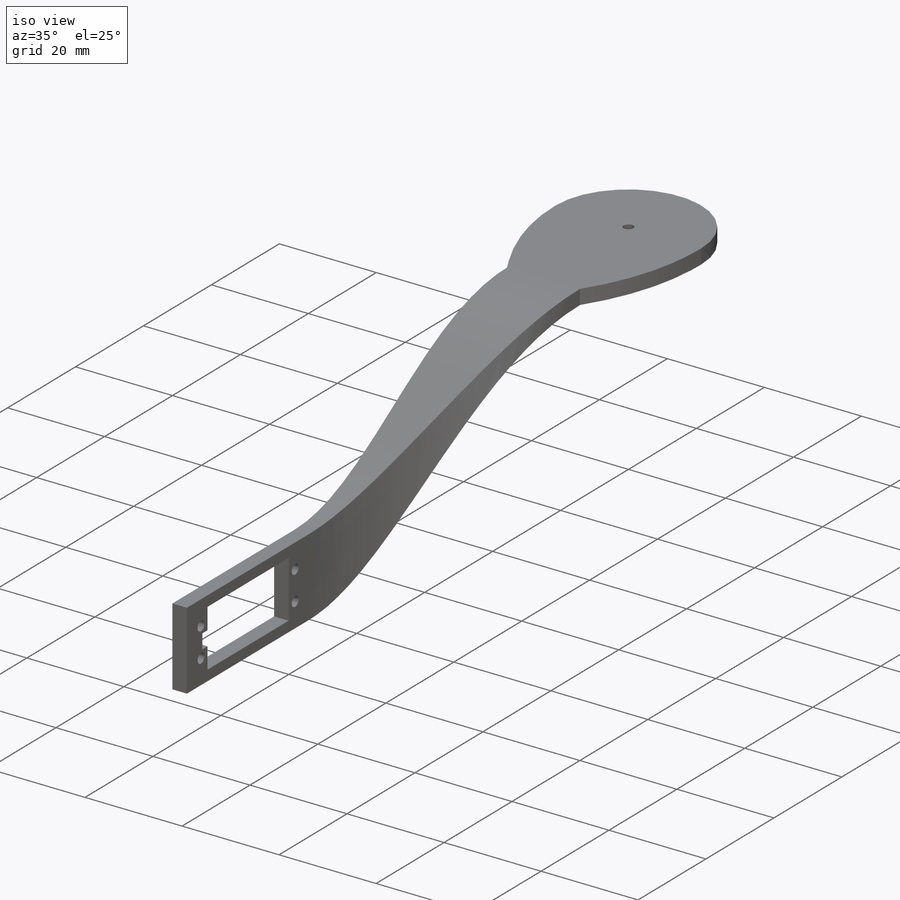
[diagram: iso view]
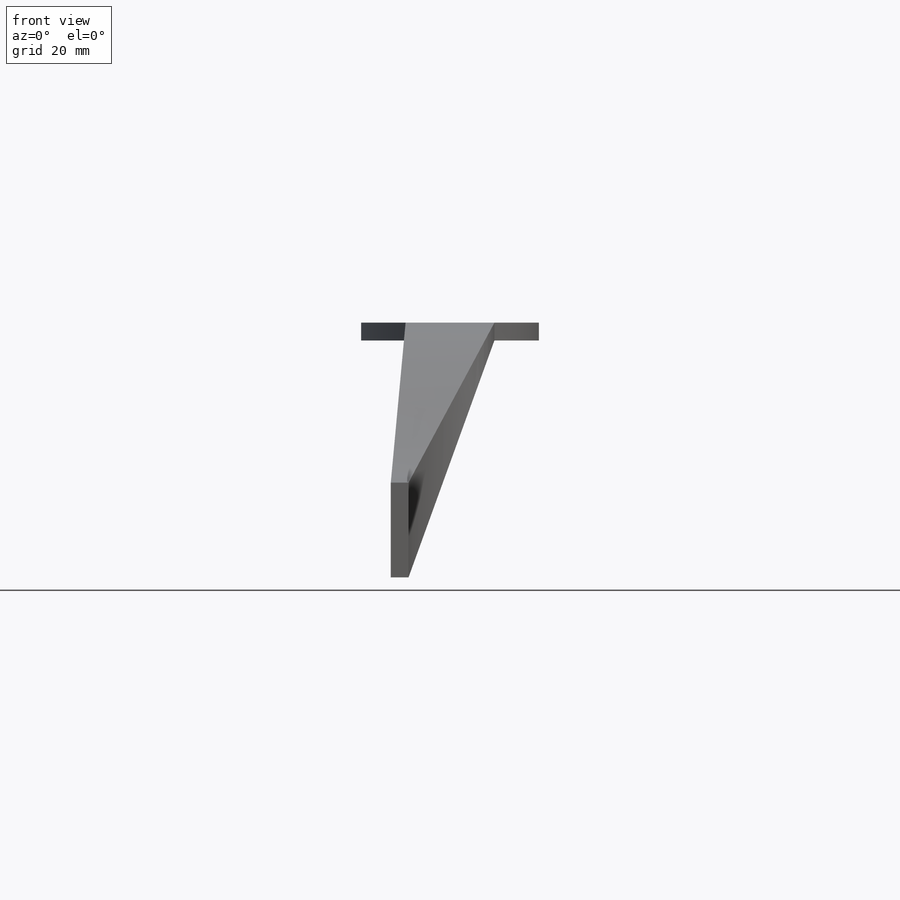
[diagram: front view]
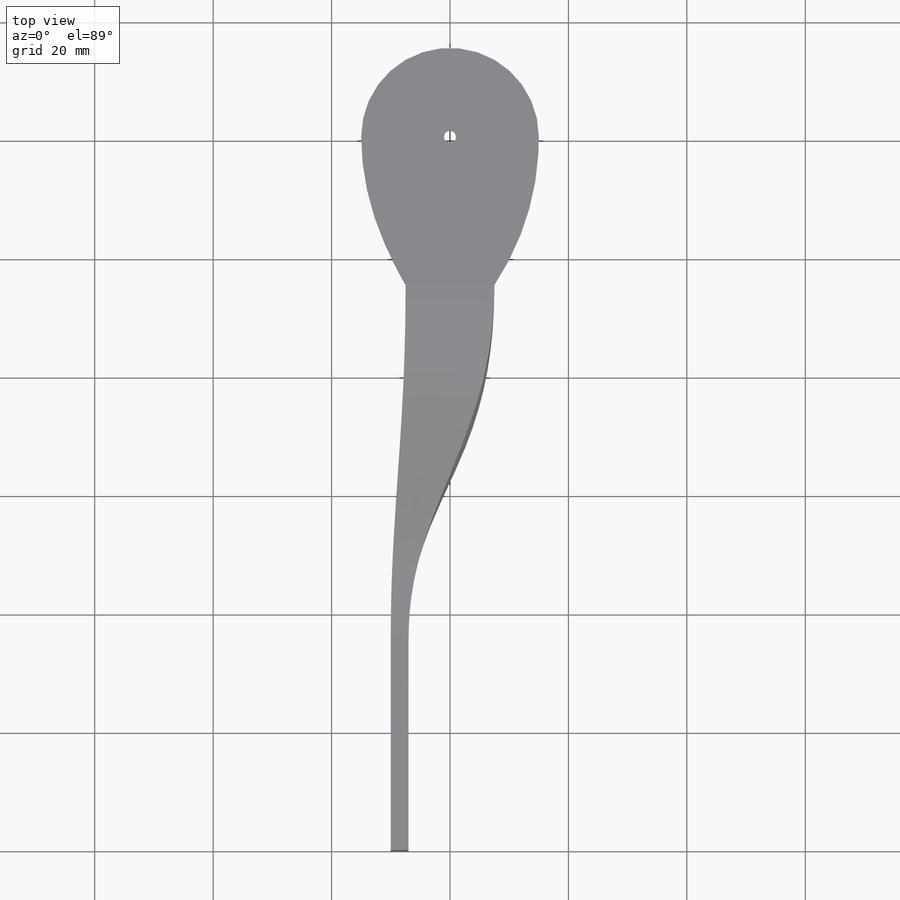
[diagram: top view]
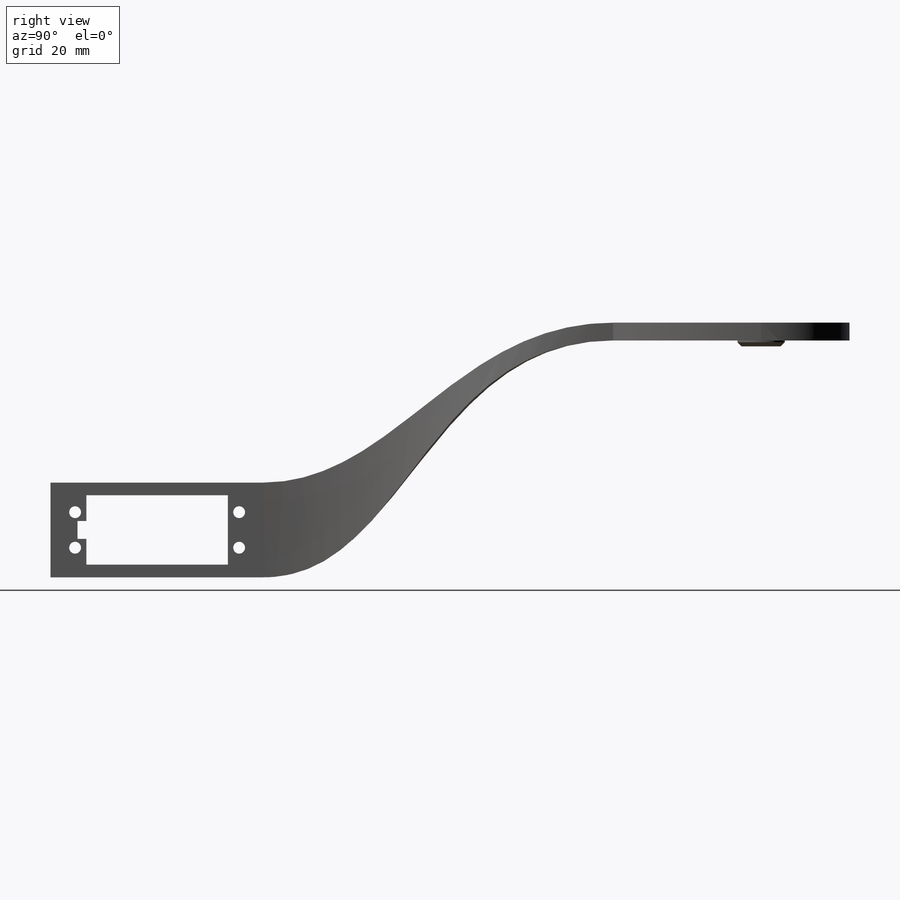
[diagram: right view]
SOLIDWORKS PART (.sldprt)
format: sldprt  version: not decoded by parser v0  size: 265,216 bytes
history: native  units: mm
features: sketch x6, plane x3, extrude x3, cut_extrude x2, material x1, chamfer x1 (+8 scaffold rows collapsed)
feature tree (24):
  scaffold x8  (default folders/planes/origin — collapsed)
  material  "Matériau <non spécifié>"
  plane  "Plan de face"
  plane  "Plan de dessus"
  plane  "Plan de droite"
  sketch  "Esquisse1"  dims[D1=30.0mm D2=15.0mm D3=25.0mm]
  extrude  "Boss.-Extru.1"  Depth=3mm
  sketch  "Esquisse5"  dims[D1=8.0mm]
  extrude  "Boss.-Extru.3"  Depth=1mm
  sketch  "Esquisse6"  dims[D1=4.9mm]
  cut_extrude  "Enlèv. mat.-Extru.3"  Depth=3.2mm
  sketch  "Esquisse7"  dims[D1=2.0mm]
  cut_extrude  "Enlèv. mat.-Extru.4"  [1 undecoded]
  chamfer  "Chanfrein1"  Distance=0.7mm Angle=45deg
  sketch  "Esquisse3D2"  dims[c1.D8=2.0mm c1.D9=2.0mm c1.D10=2.0mm c1.D1=40.0mm c1.D2=10.0mm c1.D3=16.0mm c1.D4=36.0mm c1.D5=120.0mm c1.D6=11.7mm c1.D7=23.9mm c2.D9=1.9mm c2.D10=3.0mm c2.D11=1.5mm c2.D12=3.0mm]
  extrude  "Boss.-Extru.4"  Depth=3mm
  sketch  "Esquisse3D3"
decode coverage: 10 of 12 modeling features carry decoded parameters
note: 1 parameter value undecoded
note: suppression state not decoded; provenance and decode notes live in map.json
